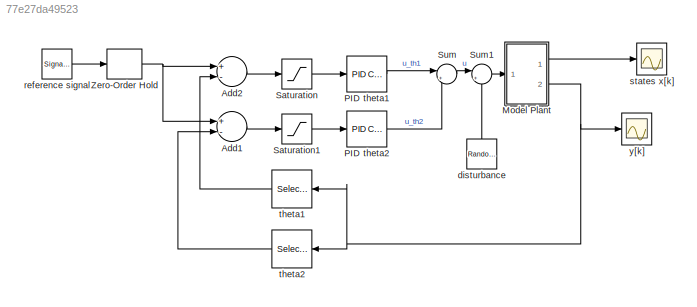
MODEL slx_77e27da49523
KIND model
CONFIG AbsTol = auto
CONFIG EnableMultiTasking = off
CONFIG FixedStep = auto
CONFIG InitFcn = lin_discr_model_PID
CONFIG MaxStep = auto
CONFIG MinStep = auto
CONFIG RelTol = 1e-3
CONFIG SampleTimeConstraint = Unconstrained
CONFIG Solver = VariableStepAuto
CONFIG SolverName = VariableStepAuto
CONFIG StartTime = 0.0
CONFIG StopTime = 30
BLOCK [RandomNumber]  disturbance
  SampleTime = Ts
BLOCK [Sum] Add1
  InputSameDT = off
  Inputs = +-
  OutDataTypeStr = Inherit: Inherit via internal rule
  Ports = [2, 1]
  SaturateOnIntegerOverflow = off
BLOCK [Sum] Add2
  InputSameDT = off
  Inputs = +-
  OutDataTypeStr = Inherit: Inherit via internal rule
  Ports = [2, 1]
  SaturateOnIntegerOverflow = off
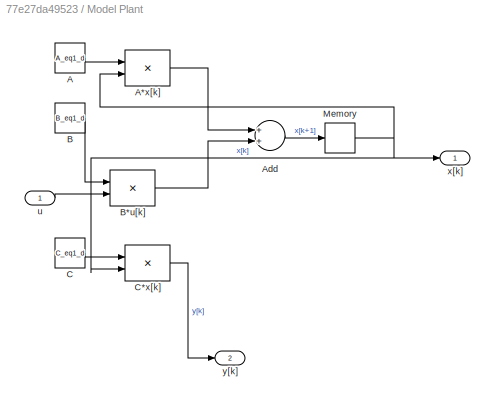
BLOCK [SubSystem] Model Plant
  Ports = [1, 2]
  RequestExecContextInheritance = off
BLOCK [Constant] Model Plant/A
  SampleTime = Ts
  Value = A_eq1_d
BLOCK [Product] Model Plant/A*x[k]
  InputSameDT = off
  Multiplication = Matrix(*)
  OutDataTypeStr = Inherit: Inherit via internal rule
  Ports = [2, 1]
  RndMeth = Floor
  SaturateOnIntegerOverflow = off
BLOCK [Sum] Model Plant/Add
  InputSameDT = off
  OutDataTypeStr = Inherit: Inherit via internal rule
  Ports = [2, 1]
  SaturateOnIntegerOverflow = off
BLOCK [Constant] Model Plant/B
  SampleTime = Ts
  Value = B_eq1_d
BLOCK [Product] Model Plant/B*u[k]
  InputSameDT = off
  Multiplication = Matrix(*)
  OutDataTypeStr = Inherit: Inherit via internal rule
  Ports = [2, 1]
  RndMeth = Floor
  SaturateOnIntegerOverflow = off
BLOCK [Constant] Model Plant/C
  SampleTime = Ts
  Value = C_eq1_d
BLOCK [Product] Model Plant/C*x[k]
  InputSameDT = off
  Multiplication = Matrix(*)
  OutDataTypeStr = Inherit: Inherit via internal rule
  Ports = [2, 1]
  RndMeth = Floor
  SaturateOnIntegerOverflow = off
BLOCK [Memory] Model Plant/Memory
  InitialCondition = [pi;0;0;0]
BLOCK [Inport] Model Plant/u
  IconDisplay = Port number
BLOCK [Outport] Model Plant/x[k]
  IconDisplay = Port number
BLOCK [Outport] Model Plant/y[k]
  IconDisplay = Port number
  Port = 2
BLOCK [Reference] PID theta1  REF=simulink/Continuous/PID Controller
  Ports = [1, 1]
  SourceBlock = simulink/Continuous/PID Controller
  SourceProductBaseCode = SL
  SourceProductName = Simulink
  SourceType = PID 1dof
BLOCK [Reference] PID theta2  REF=simulink/Continuous/PID Controller
  Ports = [1, 1]
  SourceBlock = simulink/Continuous/PID Controller
  SourceProductBaseCode = SL
  SourceProductName = Simulink
  SourceType = PID 1dof
BLOCK [Saturate] Saturation
  InputPortMap = u0
  LowerLimit = -1
  Ports = [1, 1]
  UpperLimit = 1
BLOCK [Saturate] Saturation1
  InputPortMap = u0
  LowerLimit = -1
  Ports = [1, 1]
  UpperLimit = 1
BLOCK [Sum] Sum
  IconShape = round
  InputSameDT = off
  Inputs = |++
  OutDataTypeStr = Inherit: Inherit via internal rule
  Ports = [2, 1]
  SaturateOnIntegerOverflow = off
BLOCK [Sum] Sum1
  IconShape = round
  InputSameDT = off
  Inputs = |++
  OutDataTypeStr = Inherit: Inherit via internal rule
  Ports = [2, 1]
  SaturateOnIntegerOverflow = off
BLOCK [ZeroOrderHold] Zero-Order Hold
  SampleTime = Ts
BLOCK [SignalGenerator] reference signal
  Amplitude = 0
  Ports = [0, 1]
  WaveForm = square
BLOCK [Scope] states x[k]
  Floating = off
  NumInputPorts = 1
  Ports = [1]
  ScopeSpecificationString = Simulink.scopes.TimeScopeBlockCfg('CurrentConfiguration', extmgr.ConfigurationSet(extmgr.Configuration('Core','General UI',true),extmgr.Configuration('Core','Source UI',true),extmgr.Configuration('Sources','WiredSimulink',true,'DataLoggingVariableName','ScopeData2'),extmgr.Configuration('Visuals','Time Domain',true,'SerializedDisplays',{struct('MinYLimReal','-4.99135','MaxYLimReal','5.38955','YLab...<+1423ch>
BLOCK [Selector] theta1
  IndexOptions = Index vector (dialog)
  Indices = 1
  InputPortWidth = 2
  OutputSizes = 1
  Ports = [1, 1]
BLOCK [Selector] theta2
  IndexOptions = Index vector (dialog)
  Indices = 2
  InputPortWidth = 2
  OutputSizes = 1
  Ports = [1, 1]
BLOCK [Scope] y[k]
  Floating = off
  NumInputPorts = 1
  Ports = [1]
  ScopeSpecificationString = Simulink.scopes.TimeScopeBlockCfg('CurrentConfiguration', extmgr.ConfigurationSet(extmgr.Configuration('Core','General UI',true),extmgr.Configuration('Core','Source UI',true),extmgr.Configuration('Sources','WiredSimulink',true,'DataLoggingVariableName','ScopeData4'),extmgr.Configuration('Visuals','Time Domain',true,'SerializedDisplays',{struct('MinYLimReal','-7.69807','MaxYLimReal','7.91479','YLab...<+1473ch>
LINE  disturbance:1 -> Sum1:2
LINE Add1:1 -> Saturation1:1
LINE Add2:1 -> Saturation:1
LINE Model Plant/A*x[k]:1 -> Model Plant/Add:1
LINE Model Plant/A:1 -> Model Plant/A*x[k]:1
LINE Model Plant/Add:1 -> Model Plant/Memory:1
LINE Model Plant/B*u[k]:1 -> Model Plant/Add:2
LINE Model Plant/B:1 -> Model Plant/B*u[k]:1
LINE Model Plant/C*x[k]:1 -> Model Plant/y[k]:1
LINE Model Plant/C:1 -> Model Plant/C*x[k]:1
NET Model Plant/Memory:1 -> Model Plant/A*x[k]:2, Model Plant/C*x[k]:2, Model Plant/x[k]:1
LINE Model Plant/u:1 -> Model Plant/B*u[k]:2
LINE Model Plant:1 -> states x[k]:1
NET Model Plant:2 -> theta1:1, theta2:1, y[k]:1
LINE PID theta1:1 -> Sum:1
LINE PID theta2:1 -> Sum:2
LINE Saturation1:1 -> PID theta2:1
LINE Saturation:1 -> PID theta1:1
LINE Sum1:1 -> Model Plant:1
LINE Sum:1 -> Sum1:1
NET Zero-Order Hold:1 -> Add1:1, Add2:1
LINE reference signal:1 -> Zero-Order Hold:1
LINE theta1:1 -> Add2:2
LINE theta2:1 -> Add1:2
note: NET lines group one-source signal fan-out (src -> all destinations, sorted); 1:1 wires keep LINE
